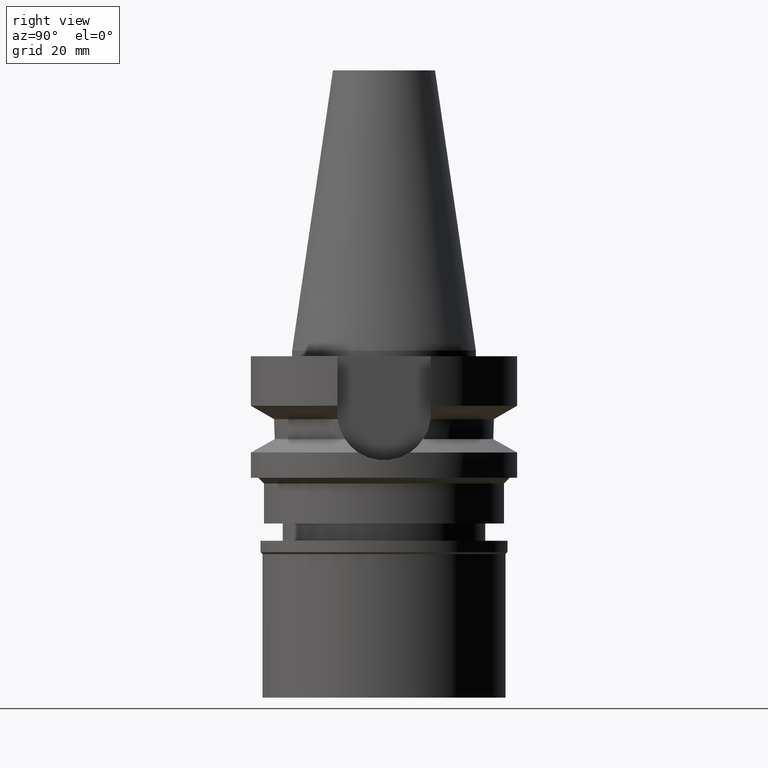
[diagram: clean part render]
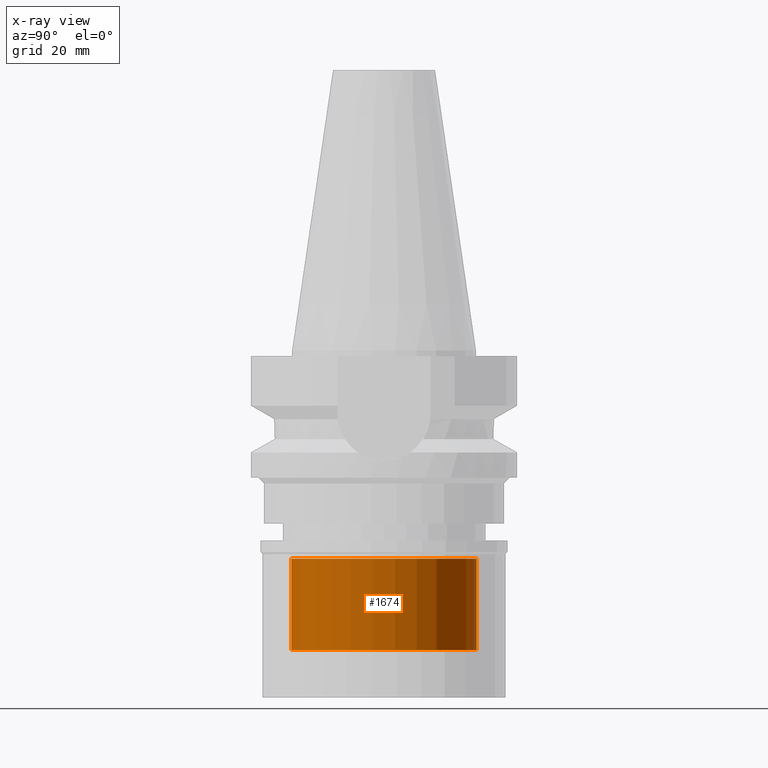
[diagram: x-ray — body ghosted, one internal face saturated and labeled with its STEP entity id]
A machine part, right view, then the same camera in x-ray: the body is ghosted and one INTERNAL B-rep face — a face not visible from any outside direction — is saturated and labeled: STEP entity #1674.
In plain terms, the highlighted cylindrical surface (partial cylindrical patch) has radius 16 mm, axis along (0, 0, -1).
Its self-contained STEP definition (entity closure, byte-faithful):
#23 = CARTESIAN_POINT ( 'NONE',  ( 0.0000000000000000000, 16.00000000000000000, -3.100000000000000089 ) ) ;
#49 = VERTEX_POINT ( 'NONE', #2800 ) ;
#60 = VERTEX_POINT ( 'NONE', #23 ) ;
#105 = EDGE_LOOP ( 'NONE', ( #892, #2263, #2804, #1432 ) ) ;
#308 = VERTEX_POINT ( 'NONE', #2984 ) ;
#482 = CARTESIAN_POINT ( 'NONE',  ( 0.0000000000000000000, 0.0000000000000000000, 0.0000000000000000000 ) ) ;
#522 = AXIS2_PLACEMENT_3D ( 'NONE', #2845, #1024, #525 ) ;
#525 = DIRECTION ( 'NONE',  ( 0.0000000000000000000, 1.000000000000000000, 0.0000000000000000000 ) ) ;
#634 = DIRECTION ( 'NONE',  ( 0.0000000000000000000, 0.0000000000000000000, 1.000000000000000000 ) ) ;
#671 = CIRCLE ( 'NONE', #1929, 16.00000000000000000 ) ;
#681 = EDGE_CURVE ( 'NONE', #49, #1672, #1827, .T. ) ;
#892 = ORIENTED_EDGE ( 'NONE', *, *, #681, .T. ) ;
#1024 = DIRECTION ( 'NONE',  ( 0.0000000000000000000, 0.0000000000000000000, -1.000000000000000000 ) ) ;
#1322 = DIRECTION ( 'NONE',  ( 0.0000000000000000000, 0.0000000000000000000, 1.000000000000000000 ) ) ;
#1407 = CARTESIAN_POINT ( 'NONE',  ( 0.0000000000000000000, -16.00000000000000000, -18.89999999999999858 ) ) ;
#1425 = DIRECTION ( 'NONE',  ( 0.0000000000000000000, 0.0000000000000000000, -1.000000000000000000 ) ) ;
#1432 = ORIENTED_EDGE ( 'NONE', *, *, #1658, .F. ) ;
#1552 = CARTESIAN_POINT ( 'NONE',  ( 0.0000000000000000000, 16.00000000000000000, -18.89999999999999858 ) ) ;
#1650 = DIRECTION ( 'NONE',  ( 0.0000000000000000000, 0.0000000000000000000, 1.000000000000000000 ) ) ;
#1658 = EDGE_CURVE ( 'NONE', #49, #60, #2714, .T. ) ;
#1664 = EDGE_CURVE ( 'NONE', #308, #60, #671, .T. ) ;
#1672 = VERTEX_POINT ( 'NONE', #1407 ) ;
#1674 = ADVANCED_FACE ( 'NONE', ( #2812 ), #2379, .F. ) ;
#1825 = LINE ( 'NONE', #2275, #2668 ) ;
#1827 = CIRCLE ( 'NONE', #522, 16.00000000000000000 ) ;
#1929 = AXIS2_PLACEMENT_3D ( 'NONE', #2347, #1650, #2797 ) ;
#2029 = EDGE_CURVE ( 'NONE', #1672, #308, #1825, .T. ) ;
#2034 = VECTOR ( 'NONE', #1322, 1000.000000000000000 ) ;
#2263 = ORIENTED_EDGE ( 'NONE', *, *, #2029, .T. ) ;
#2275 = CARTESIAN_POINT ( 'NONE',  ( 0.0000000000000000000, -16.00000000000000000, -18.89999999999999858 ) ) ;
#2347 = CARTESIAN_POINT ( 'NONE',  ( 0.0000000000000000000, 0.0000000000000000000, -3.100000000000000089 ) ) ;
#2379 = CYLINDRICAL_SURFACE ( 'NONE', #2764, 16.00000000000000000 ) ;
#2399 = DIRECTION ( 'NONE',  ( 0.0000000000000000000, -1.000000000000000000, 0.0000000000000000000 ) ) ;
#2668 = VECTOR ( 'NONE', #634, 1000.000000000000000 ) ;
#2714 = LINE ( 'NONE', #1552, #2034 ) ;
#2764 = AXIS2_PLACEMENT_3D ( 'NONE', #482, #1425, #2399 ) ;
#2797 = DIRECTION ( 'NONE',  ( 0.0000000000000000000, -1.000000000000000000, 0.0000000000000000000 ) ) ;
#2800 = CARTESIAN_POINT ( 'NONE',  ( 0.0000000000000000000, 16.00000000000000000, -18.89999999999999858 ) ) ;
#2804 = ORIENTED_EDGE ( 'NONE', *, *, #1664, .T. ) ;
#2812 = FACE_OUTER_BOUND ( 'NONE', #105, .T. ) ;
#2845 = CARTESIAN_POINT ( 'NONE',  ( 0.0000000000000000000, 0.0000000000000000000, -18.89999999999999858 ) ) ;
#2984 = CARTESIAN_POINT ( 'NONE',  ( 0.0000000000000000000, -16.00000000000000000, -3.100000000000000089 ) ) ;